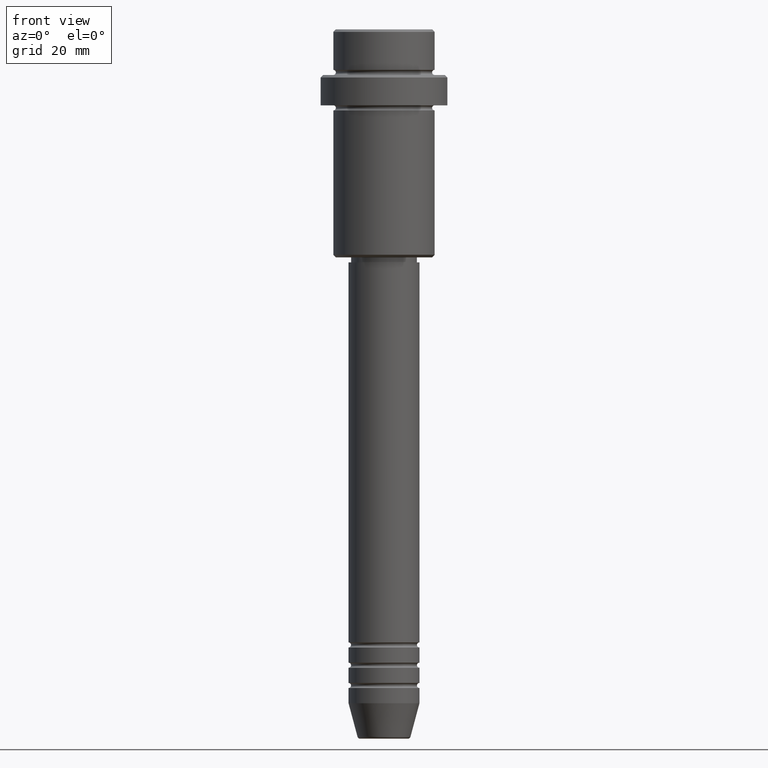
[diagram: clean part render]
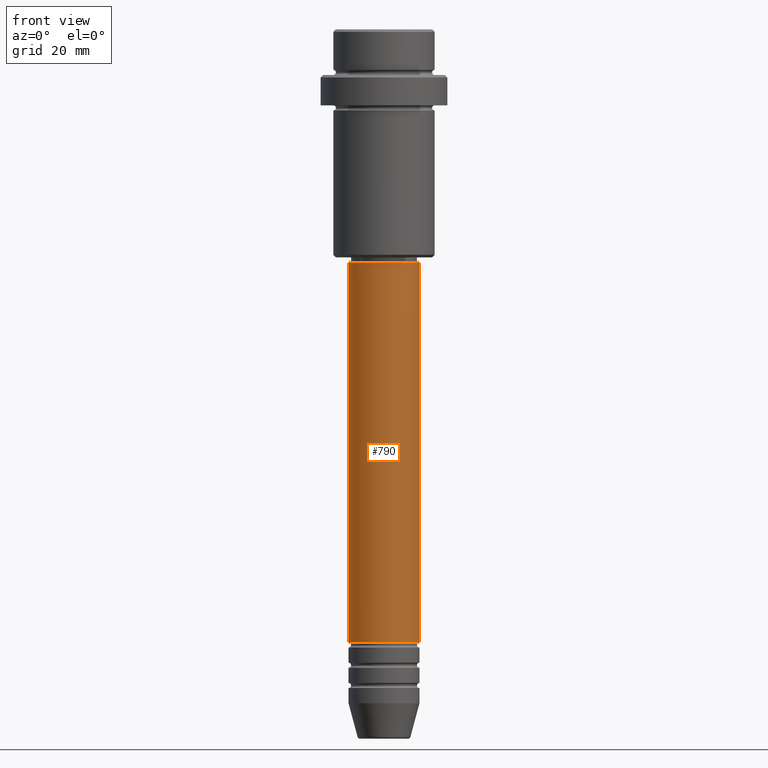
[diagram: same view with one face highlighted and labeled with its STEP entity id]
A machine part, front view. The second image highlights one B-rep face of the part: STEP entity #790.
In plain terms, the highlighted cylindrical surface (edge-blend (fillet) strip) has radius 7 mm, axis along (-0, -0, 1).
Its self-contained STEP definition (entity closure, byte-faithful):
#52 = CIRCLE ( 'NONE', #1148, 7.000000000000000000 ) ;
#93 = LINE ( 'NONE', #1183, #752 ) ;
#137 = EDGE_CURVE ( 'NONE', #1411, #1181, #52, .T. ) ;
#141 = CARTESIAN_POINT ( 'NONE',  ( 7.000000000000000000, 0.000000000000000000, -46.00000000000001421 ) ) ;
#169 = VERTEX_POINT ( 'NONE', #141 ) ;
#252 = DIRECTION ( 'NONE',  ( -0.000000000000000000, -0.000000000000000000, 1.000000000000000000 ) ) ;
#288 = FACE_OUTER_BOUND ( 'NONE', #1021, .T. ) ;
#296 = DIRECTION ( 'NONE',  ( -0.000000000000000000, -0.000000000000000000, 1.000000000000000000 ) ) ;
#329 = ORIENTED_EDGE ( 'NONE', *, *, #556, .F. ) ;
#418 = CARTESIAN_POINT ( 'NONE',  ( 0.000000000000000000, 0.000000000000000000, 0.000000000000000000 ) ) ;
#485 = CARTESIAN_POINT ( 'NONE',  ( -7.000000000000000000, 8.572527594031473190E-16, 0.000000000000000000 ) ) ;
#486 = DIRECTION ( 'NONE',  ( 1.000000000000000000, 0.000000000000000000, 0.000000000000000000 ) ) ;
#487 = ORIENTED_EDGE ( 'NONE', *, *, #783, .F. ) ;
#528 = ORIENTED_EDGE ( 'NONE', *, *, #137, .T. ) ;
#542 = AXIS2_PLACEMENT_3D ( 'NONE', #418, #296, #852 ) ;
#556 = EDGE_CURVE ( 'NONE', #1411, #1145, #1022, .T. ) ;
#608 = VECTOR ( 'NONE', #252, 1000.000000000000000 ) ;
#677 = AXIS2_PLACEMENT_3D ( 'NONE', #738, #858, #733 ) ;
#717 = CARTESIAN_POINT ( 'NONE',  ( 0.000000000000000000, 0.000000000000000000, -120.9999999999999005 ) ) ;
#733 = DIRECTION ( 'NONE',  ( 1.000000000000000000, 0.000000000000000000, 0.000000000000000000 ) ) ;
#738 = CARTESIAN_POINT ( 'NONE',  ( 0.000000000000000000, 0.000000000000000000, -46.00000000000001421 ) ) ;
#752 = VECTOR ( 'NONE', #774, 1000.000000000000000 ) ;
#774 = DIRECTION ( 'NONE',  ( -0.000000000000000000, -0.000000000000000000, 1.000000000000000000 ) ) ;
#783 = EDGE_CURVE ( 'NONE', #1145, #169, #1314, .T. ) ;
#790 = ADVANCED_FACE ( 'NONE', ( #288 ), #1393, .T. ) ;
#823 = DIRECTION ( 'NONE',  ( -0.000000000000000000, -0.000000000000000000, 1.000000000000000000 ) ) ;
#852 = DIRECTION ( 'NONE',  ( 1.000000000000000000, 0.000000000000000000, 0.000000000000000000 ) ) ;
#858 = DIRECTION ( 'NONE',  ( -0.000000000000000000, -0.000000000000000000, 1.000000000000000000 ) ) ;
#918 = CARTESIAN_POINT ( 'NONE',  ( -7.000000000000000000, 8.572527594031473190E-16, -46.00000000000001421 ) ) ;
#997 = CARTESIAN_POINT ( 'NONE',  ( -7.000000000000000000, 8.572527594031473190E-16, -120.9999999999999005 ) ) ;
#1021 = EDGE_LOOP ( 'NONE', ( #329, #528, #1345, #487 ) ) ;
#1022 = LINE ( 'NONE', #485, #608 ) ;
#1048 = CARTESIAN_POINT ( 'NONE',  ( 7.000000000000000000, 0.000000000000000000, -120.9999999999999005 ) ) ;
#1145 = VERTEX_POINT ( 'NONE', #918 ) ;
#1148 = AXIS2_PLACEMENT_3D ( 'NONE', #717, #823, #486 ) ;
#1181 = VERTEX_POINT ( 'NONE', #1048 ) ;
#1183 = CARTESIAN_POINT ( 'NONE',  ( 7.000000000000000000, 0.000000000000000000, 0.000000000000000000 ) ) ;
#1314 = CIRCLE ( 'NONE', #677, 7.000000000000000000 ) ;
#1345 = ORIENTED_EDGE ( 'NONE', *, *, #1373, .T. ) ;
#1373 = EDGE_CURVE ( 'NONE', #1181, #169, #93, .T. ) ;
#1393 = CYLINDRICAL_SURFACE ( 'NONE', #542, 7.000000000000000000 ) ;
#1411 = VERTEX_POINT ( 'NONE', #997 ) ;